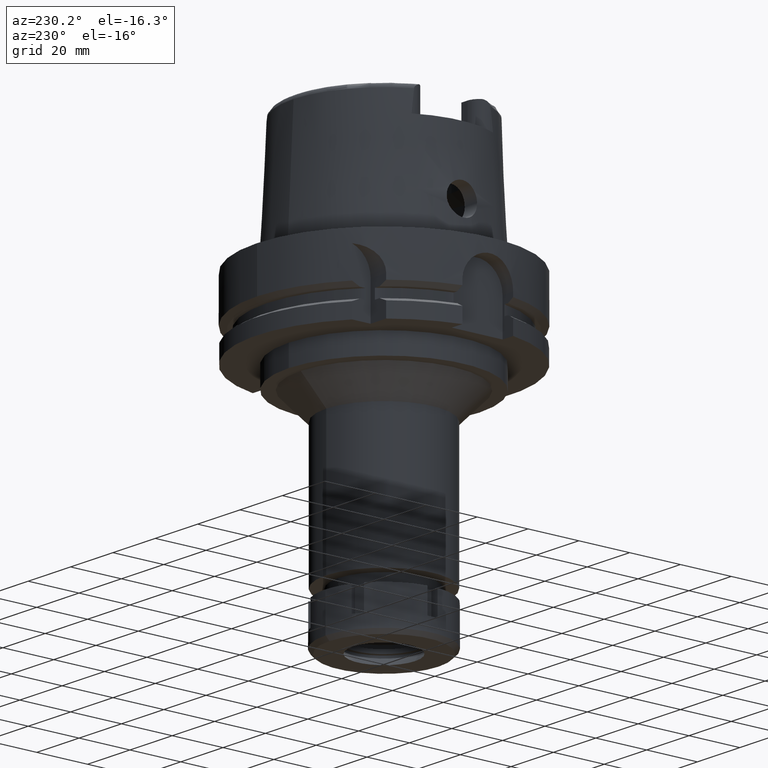
[diagram: clean part render]
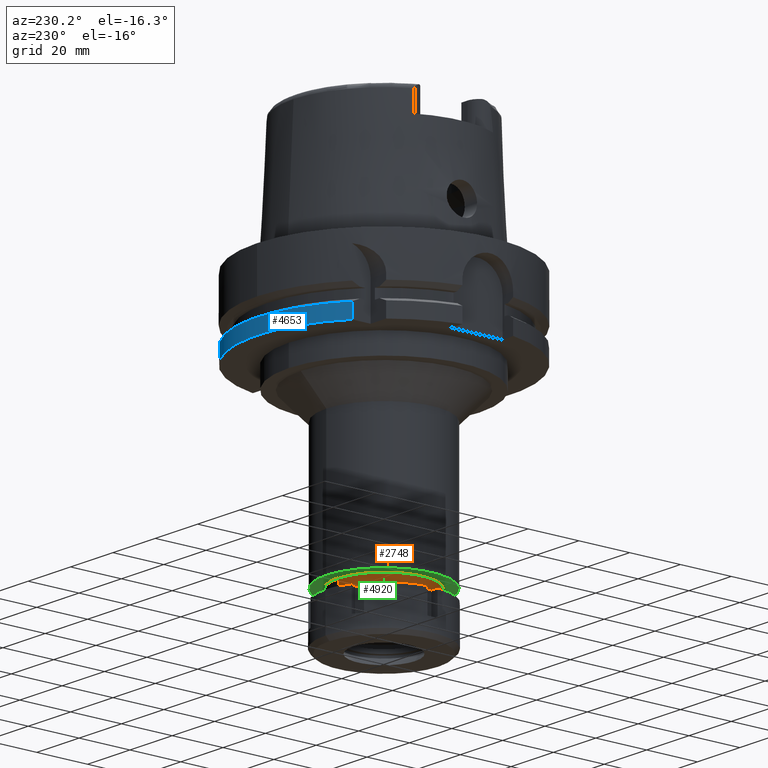
[diagram: same view with three faces highlighted in distinct colors, each labeled with its STEP entity id]
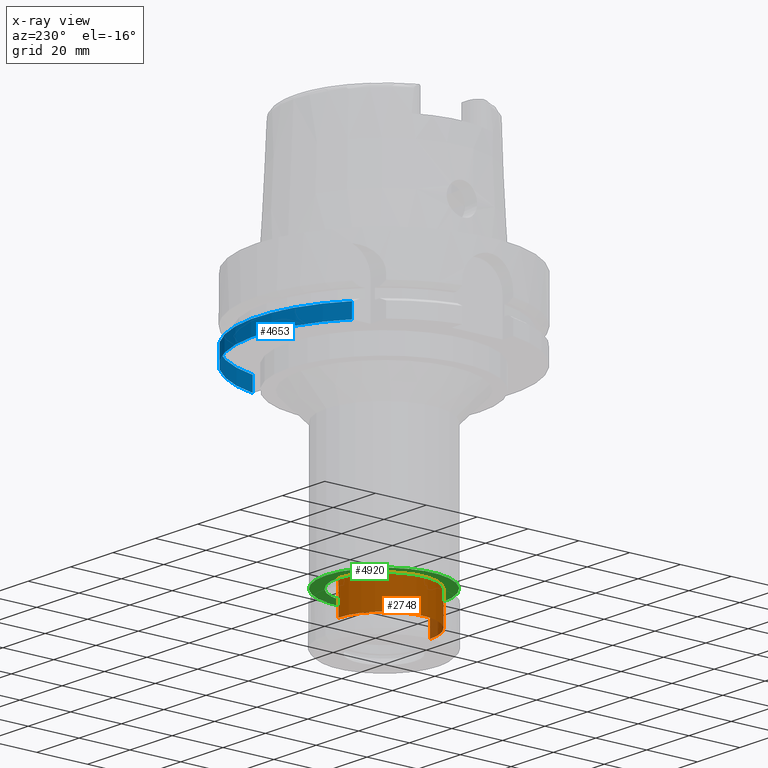
[diagram: x-ray of the same camera — body ghosted, the three highlighted faces saturated]
A machine part, auxiliary view with three faces highlighted in distinct colors.
The next image is the same camera in x-ray (body ghosted, the three faces saturated) — at least one of them is partly hidden behind the body in this view.
Their STEP definitions:

[orange] entity #2748 — the highlighted cylindrical surface (partial cylindrical patch) has radius 18 mm, axis along (0, 0, 1).
#283 = CIRCLE ( 'NONE', #2647, 18.00000000000000000 ) ;
#335 = EDGE_CURVE ( 'NONE', #2885, #585, #963, .T. ) ;
#545 = DIRECTION ( 'NONE',  ( 0.0000000000000000000, 1.000000000000000000, 0.0000000000000000000 ) ) ;
#585 = VERTEX_POINT ( 'NONE', #4908 ) ;
#897 = DIRECTION ( 'NONE',  ( 0.0000000000000000000, 0.0000000000000000000, -1.000000000000000000 ) ) ;
#924 = CARTESIAN_POINT ( 'NONE',  ( 0.0000000000000000000, 0.0000000000000000000, -99.50000000000000000 ) ) ;
#948 = EDGE_LOOP ( 'NONE', ( #4768, #3584, #5758, #3000 ) ) ;
#953 = DIRECTION ( 'NONE',  ( 0.0000000000000000000, 0.0000000000000000000, -1.000000000000000000 ) ) ;
#963 = LINE ( 'NONE', #999, #1586 ) ;
#999 = CARTESIAN_POINT ( 'NONE',  ( 0.0000000000000000000, 18.00000000000000000, -99.50000000000000000 ) ) ;
#1545 = CARTESIAN_POINT ( 'NONE',  ( 0.0000000000000000000, 0.0000000000000000000, -120.0999999999999943 ) ) ;
#1586 = VECTOR ( 'NONE', #2758, 1000.000000000000000 ) ;
#1622 = CARTESIAN_POINT ( 'NONE',  ( 0.0000000000000000000, -18.00000000000000000, -99.50000000000000000 ) ) ;
#2245 = VERTEX_POINT ( 'NONE', #3958 ) ;
#2491 = AXIS2_PLACEMENT_3D ( 'NONE', #1545, #2959, #545 ) ;
#2647 = AXIS2_PLACEMENT_3D ( 'NONE', #2725, #5062, #5559 ) ;
#2725 = CARTESIAN_POINT ( 'NONE',  ( 0.0000000000000000000, 0.0000000000000000000, -112.0000000000000000 ) ) ;
#2748 = ADVANCED_FACE ( 'NONE', ( #5243 ), #3877, .T. ) ;
#2758 = DIRECTION ( 'NONE',  ( 0.0000000000000000000, 0.0000000000000000000, -1.000000000000000000 ) ) ;
#2776 = CARTESIAN_POINT ( 'NONE',  ( 0.0000000000000000000, -18.00000000000000000, -99.50000000000000000 ) ) ;
#2838 = VECTOR ( 'NONE', #897, 1000.000000000000000 ) ;
#2885 = VERTEX_POINT ( 'NONE', #4869 ) ;
#2959 = DIRECTION ( 'NONE',  ( 0.0000000000000000000, 0.0000000000000000000, 1.000000000000000000 ) ) ;
#3000 = ORIENTED_EDGE ( 'NONE', *, *, #335, .T. ) ;
#3363 = CIRCLE ( 'NONE', #5699, 18.00000000000000000 ) ;
#3584 = ORIENTED_EDGE ( 'NONE', *, *, #4977, .F. ) ;
#3877 = CYLINDRICAL_SURFACE ( 'NONE', #2491, 18.00000000000000000 ) ;
#3958 = CARTESIAN_POINT ( 'NONE',  ( 0.0000000000000000000, -18.00000000000000000, -112.0000000000000000 ) ) ;
#4205 = DIRECTION ( 'NONE',  ( 0.0000000000000000000, -1.000000000000000000, 0.0000000000000000000 ) ) ;
#4344 = EDGE_CURVE ( 'NONE', #4351, #2885, #3363, .T. ) ;
#4351 = VERTEX_POINT ( 'NONE', #2776 ) ;
#4556 = LINE ( 'NONE', #1622, #2838 ) ;
#4768 = ORIENTED_EDGE ( 'NONE', *, *, #4954, .T. ) ;
#4869 = CARTESIAN_POINT ( 'NONE',  ( 0.0000000000000000000, 18.00000000000000000, -99.50000000000000000 ) ) ;
#4908 = CARTESIAN_POINT ( 'NONE',  ( 0.0000000000000000000, 18.00000000000000000, -112.0000000000000000 ) ) ;
#4954 = EDGE_CURVE ( 'NONE', #585, #2245, #283, .T. ) ;
#4977 = EDGE_CURVE ( 'NONE', #4351, #2245, #4556, .T. ) ;
#5062 = DIRECTION ( 'NONE',  ( 0.0000000000000000000, 0.0000000000000000000, 1.000000000000000000 ) ) ;
#5243 = FACE_OUTER_BOUND ( 'NONE', #948, .T. ) ;
#5559 = DIRECTION ( 'NONE',  ( 0.0000000000000000000, 1.000000000000000000, 0.0000000000000000000 ) ) ;
#5699 = AXIS2_PLACEMENT_3D ( 'NONE', #924, #953, #4205 ) ;
#5758 = ORIENTED_EDGE ( 'NONE', *, *, #4344, .T. ) ;

[blue] entity #4653 — the highlighted cylindrical surface (partial cylindrical patch) has radius 50 mm, axis along (0, 0, 1).
#81 = DIRECTION ( 'NONE',  ( 6.188494047474892859E-07, 5.020316378013912240E-07, -0.9999999999996824762 ) ) ;
#117 = VECTOR ( 'NONE', #3114, 1000.000000000000000 ) ;
#213 = DIRECTION ( 'NONE',  ( -0.6299999999999789102, 0.7765951326141738997, 0.0000000000000000000 ) ) ;
#279 = DIRECTION ( 'NONE',  ( 0.0000000000000000000, 0.0000000000000000000, 1.000000000000000000 ) ) ;
#534 = CARTESIAN_POINT ( 'NONE',  ( -31.50000355985999789, 38.82975374283000036, -23.24760820811999906 ) ) ;
#605 = LINE ( 'NONE', #3806, #1698 ) ;
#641 = DIRECTION ( 'NONE',  ( 0.0000000000000000000, 1.000000000000000000, 0.0000000000000000000 ) ) ;
#1139 = ORIENTED_EDGE ( 'NONE', *, *, #1788, .F. ) ;
#1318 = AXIS2_PLACEMENT_3D ( 'NONE', #1738, #3593, #213 ) ;
#1402 = EDGE_CURVE ( 'NONE', #5419, #4836, #4134, .T. ) ;
#1609 = CIRCLE ( 'NONE', #1318, 50.00000000000000711 ) ;
#1643 = DIRECTION ( 'NONE',  ( 0.0000000000000000000, 1.000000000000000000, 0.0000000000000000000 ) ) ;
#1698 = VECTOR ( 'NONE', #81, 1000.000000000000000 ) ;
#1706 = LINE ( 'NONE', #3567, #117 ) ;
#1723 = ORIENTED_EDGE ( 'NONE', *, *, #2902, .F. ) ;
#1738 = CARTESIAN_POINT ( 'NONE',  ( 0.0000000000000000000, 0.0000000000000000000, -23.24759526419000011 ) ) ;
#1788 = EDGE_CURVE ( 'NONE', #2166, #4836, #605, .T. ) ;
#2111 = CYLINDRICAL_SURFACE ( 'NONE', #2938, 50.00000000000000000 ) ;
#2166 = VERTEX_POINT ( 'NONE', #534 ) ;
#2902 = EDGE_CURVE ( 'NONE', #5419, #4733, #1706, .T. ) ;
#2938 = AXIS2_PLACEMENT_3D ( 'NONE', #3436, #5836, #1643 ) ;
#2974 = EDGE_CURVE ( 'NONE', #2166, #4733, #1609, .T. ) ;
#3109 = EDGE_LOOP ( 'NONE', ( #4561, #1723, #3892, #1139 ) ) ;
#3114 = DIRECTION ( 'NONE',  ( -8.399427413532000465E-14, -2.068976605539000027E-14, 1.000000000000000000 ) ) ;
#3436 = CARTESIAN_POINT ( 'NONE',  ( 0.0000000000000000000, 0.0000000000000000000, -120.0999999999999943 ) ) ;
#3567 = CARTESIAN_POINT ( 'NONE',  ( 48.77499359303000404, 11.00000000000000000, -29.00000000000000000 ) ) ;
#3572 = CARTESIAN_POINT ( 'NONE',  ( 0.0000000000000000000, 0.0000000000000000000, -29.00000000000000000 ) ) ;
#3593 = DIRECTION ( 'NONE',  ( 0.0000000000000000000, 0.0000000000000000000, -1.000000000000000000 ) ) ;
#3721 = CARTESIAN_POINT ( 'NONE',  ( 48.77499359303000404, 11.00000000000000000, -23.24759526419000011 ) ) ;
#3806 = CARTESIAN_POINT ( 'NONE',  ( -31.50000355985999789, 38.82975374283000036, -23.24760820811999906 ) ) ;
#3892 = ORIENTED_EDGE ( 'NONE', *, *, #1402, .T. ) ;
#3941 = AXIS2_PLACEMENT_3D ( 'NONE', #3572, #279, #641 ) ;
#4134 = CIRCLE ( 'NONE', #3941, 50.00000000000000000 ) ;
#4561 = ORIENTED_EDGE ( 'NONE', *, *, #2974, .T. ) ;
#4653 = ADVANCED_FACE ( 'NONE', ( #4868 ), #2111, .T. ) ;
#4733 = VERTEX_POINT ( 'NONE', #3721 ) ;
#4836 = VERTEX_POINT ( 'NONE', #5675 ) ;
#4868 = FACE_OUTER_BOUND ( 'NONE', #3109, .T. ) ;
#5376 = CARTESIAN_POINT ( 'NONE',  ( 48.77499359303000404, 11.00000000000000000, -29.00000000000000000 ) ) ;
#5419 = VERTEX_POINT ( 'NONE', #5376 ) ;
#5675 = CARTESIAN_POINT ( 'NONE',  ( -31.50000000000000000, 38.82975663071000128, -29.00000000000000000 ) ) ;
#5836 = DIRECTION ( 'NONE',  ( 0.0000000000000000000, 0.0000000000000000000, 1.000000000000000000 ) ) ;

[green] entity #4920 — the highlighted planar face has unit normal (0, 0, 1).
#72 = CARTESIAN_POINT ( 'NONE',  ( 0.0000000000000000000, 0.0000000000000000000, -99.50000000000000000 ) ) ;
#316 = AXIS2_PLACEMENT_3D ( 'NONE', #6059, #3734, #1038 ) ;
#356 = DIRECTION ( 'NONE',  ( 0.0000000000000000000, 1.000000000000000000, 0.0000000000000000000 ) ) ;
#369 = FACE_OUTER_BOUND ( 'NONE', #4307, .T. ) ;
#705 = CIRCLE ( 'NONE', #316, 22.75000000000000000 ) ;
#862 = EDGE_CURVE ( 'NONE', #2885, #4351, #5785, .T. ) ;
#867 = CARTESIAN_POINT ( 'NONE',  ( 0.0000000000000000000, 0.0000000000000000000, -99.50000000000000000 ) ) ;
#924 = CARTESIAN_POINT ( 'NONE',  ( 0.0000000000000000000, 0.0000000000000000000, -99.50000000000000000 ) ) ;
#953 = DIRECTION ( 'NONE',  ( 0.0000000000000000000, 0.0000000000000000000, -1.000000000000000000 ) ) ;
#985 = CARTESIAN_POINT ( 'NONE',  ( 0.0000000000000000000, 22.75000000000000000, -99.50000000000000000 ) ) ;
#1038 = DIRECTION ( 'NONE',  ( 0.0000000000000000000, 1.000000000000000000, 0.0000000000000000000 ) ) ;
#1281 = DIRECTION ( 'NONE',  ( 0.0000000000000000000, 0.0000000000000000000, 1.000000000000000000 ) ) ;
#1290 = CARTESIAN_POINT ( 'NONE',  ( 0.0000000000000000000, -22.75000000000000000, -99.50000000000000000 ) ) ;
#1405 = FACE_BOUND ( 'NONE', #3216, .T. ) ;
#1488 = AXIS2_PLACEMENT_3D ( 'NONE', #5568, #4990, #356 ) ;
#1778 = DIRECTION ( 'NONE',  ( 1.000000000000000000, 0.0000000000000000000, 0.0000000000000000000 ) ) ;
#1843 = ORIENTED_EDGE ( 'NONE', *, *, #4344, .F. ) ;
#1965 = EDGE_CURVE ( 'NONE', #4409, #2553, #705, .T. ) ;
#1968 = DIRECTION ( 'NONE',  ( 0.0000000000000000000, -1.000000000000000000, 0.0000000000000000000 ) ) ;
#2553 = VERTEX_POINT ( 'NONE', #1290 ) ;
#2776 = CARTESIAN_POINT ( 'NONE',  ( 0.0000000000000000000, -18.00000000000000000, -99.50000000000000000 ) ) ;
#2885 = VERTEX_POINT ( 'NONE', #4869 ) ;
#3216 = EDGE_LOOP ( 'NONE', ( #3758, #1843 ) ) ;
#3363 = CIRCLE ( 'NONE', #5699, 18.00000000000000000 ) ;
#3734 = DIRECTION ( 'NONE',  ( 0.0000000000000000000, 0.0000000000000000000, 1.000000000000000000 ) ) ;
#3749 = EDGE_CURVE ( 'NONE', #2553, #4409, #4618, .T. ) ;
#3758 = ORIENTED_EDGE ( 'NONE', *, *, #862, .F. ) ;
#4205 = DIRECTION ( 'NONE',  ( 0.0000000000000000000, -1.000000000000000000, 0.0000000000000000000 ) ) ;
#4307 = EDGE_LOOP ( 'NONE', ( #4438, #5195 ) ) ;
#4344 = EDGE_CURVE ( 'NONE', #4351, #2885, #3363, .T. ) ;
#4351 = VERTEX_POINT ( 'NONE', #2776 ) ;
#4409 = VERTEX_POINT ( 'NONE', #985 ) ;
#4438 = ORIENTED_EDGE ( 'NONE', *, *, #1965, .F. ) ;
#4618 = CIRCLE ( 'NONE', #4914, 22.75000000000000000 ) ;
#4666 = PLANE ( 'NONE',  #5067 ) ;
#4869 = CARTESIAN_POINT ( 'NONE',  ( 0.0000000000000000000, 18.00000000000000000, -99.50000000000000000 ) ) ;
#4914 = AXIS2_PLACEMENT_3D ( 'NONE', #72, #5690, #1968 ) ;
#4920 = ADVANCED_FACE ( 'NONE', ( #369, #1405 ), #4666, .F. ) ;
#4990 = DIRECTION ( 'NONE',  ( 0.0000000000000000000, 0.0000000000000000000, -1.000000000000000000 ) ) ;
#5067 = AXIS2_PLACEMENT_3D ( 'NONE', #867, #1281, #1778 ) ;
#5195 = ORIENTED_EDGE ( 'NONE', *, *, #3749, .F. ) ;
#5568 = CARTESIAN_POINT ( 'NONE',  ( 0.0000000000000000000, 0.0000000000000000000, -99.50000000000000000 ) ) ;
#5690 = DIRECTION ( 'NONE',  ( 0.0000000000000000000, 0.0000000000000000000, 1.000000000000000000 ) ) ;
#5699 = AXIS2_PLACEMENT_3D ( 'NONE', #924, #953, #4205 ) ;
#5785 = CIRCLE ( 'NONE', #1488, 18.00000000000000000 ) ;
#6059 = CARTESIAN_POINT ( 'NONE',  ( 0.0000000000000000000, 0.0000000000000000000, -99.50000000000000000 ) ) ;